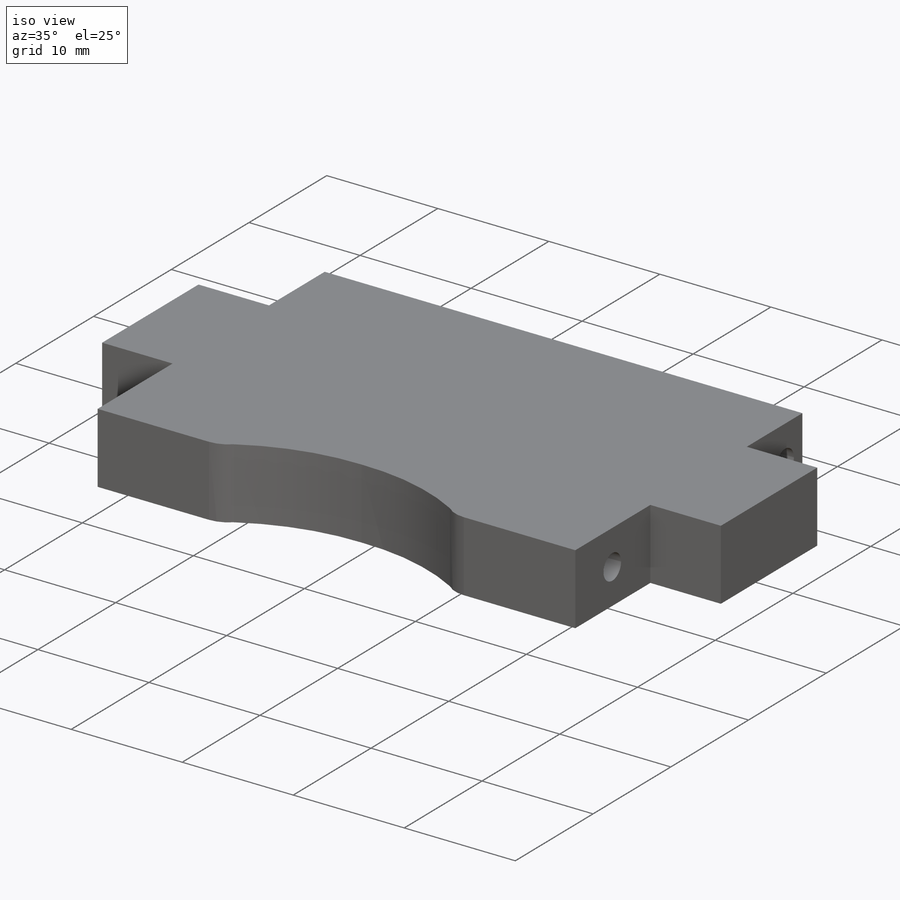
[diagram: iso view]
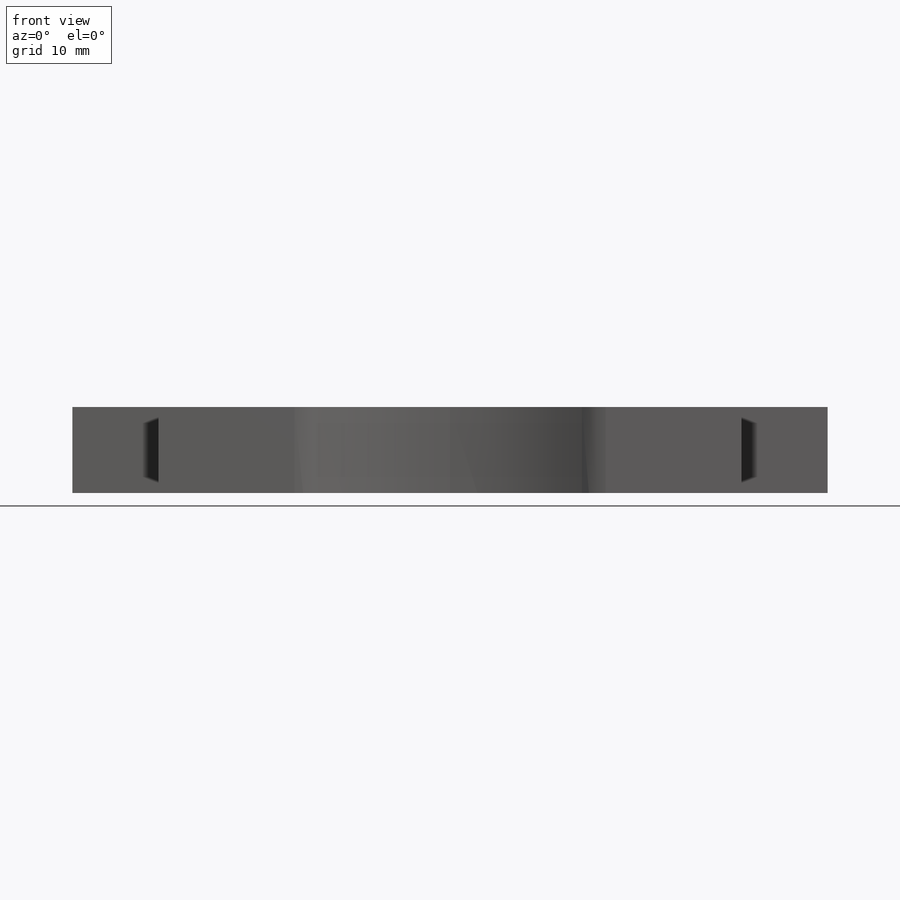
[diagram: front view]
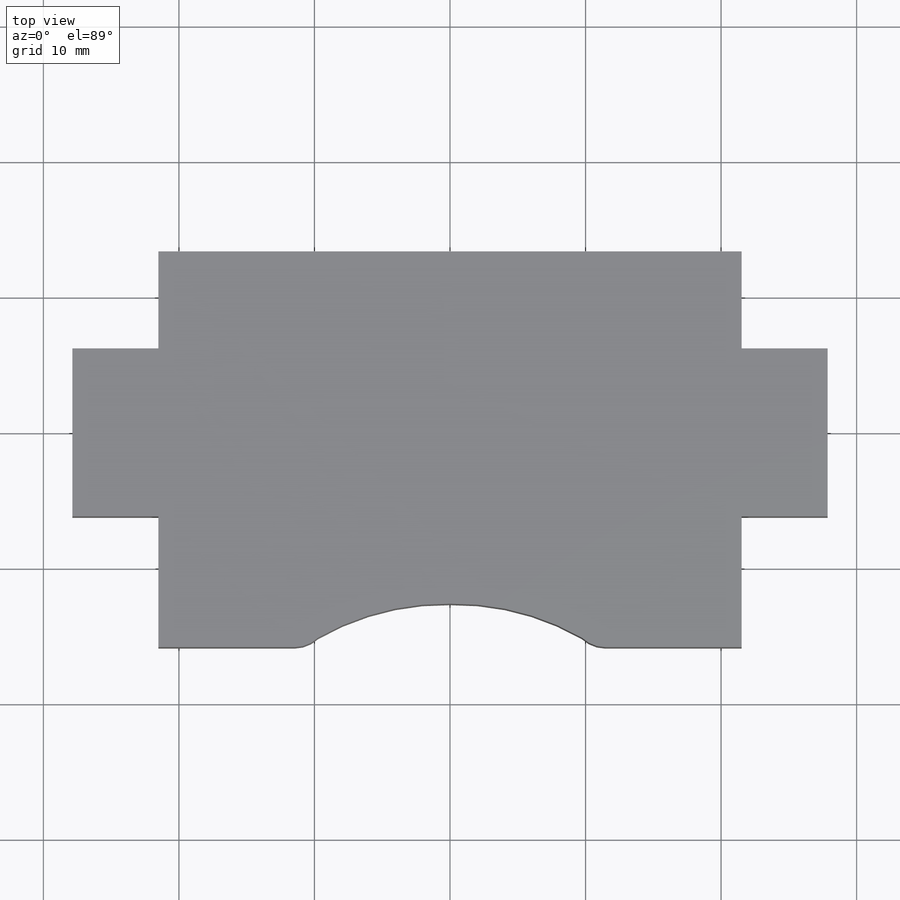
[diagram: top view]
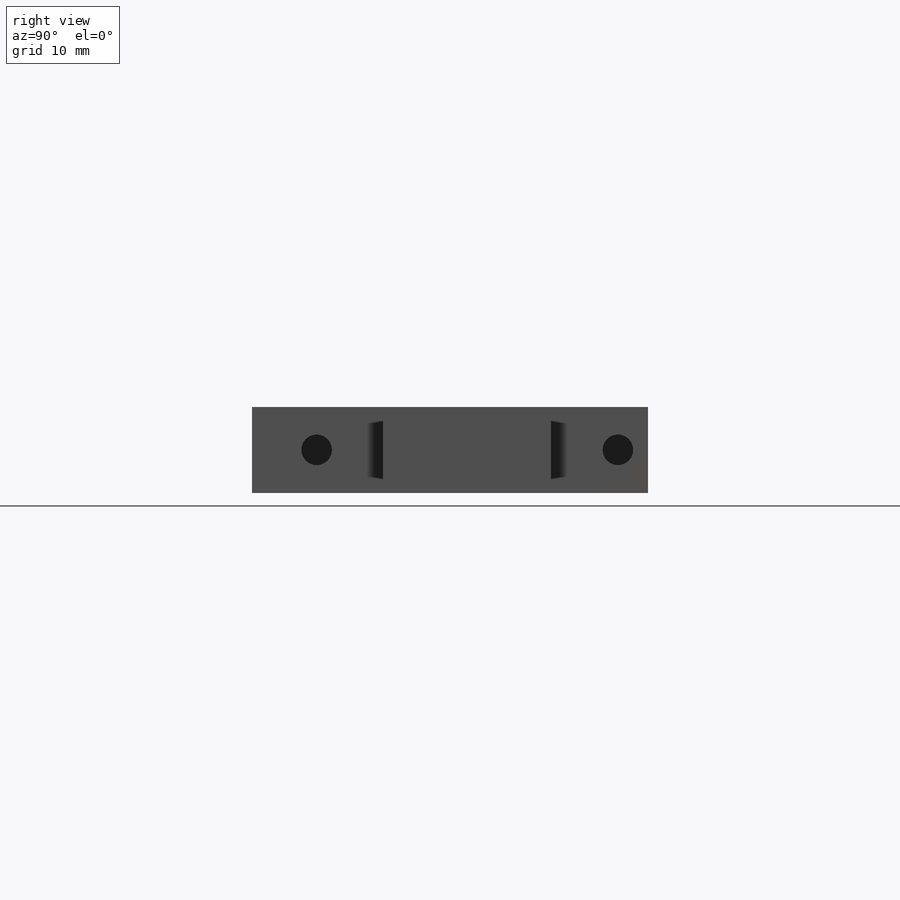
[diagram: right view]
SOLIDWORKS PART (.sldprt)
format: sldprt  version: not decoded by parser v0  size: 171,520 bytes
history: native  units: mm
features: sketch x2, material x1, extrude x1, cut_extrude x1, mirror x1, fillet x1 (+11 scaffold rows collapsed)
feature tree (18):
  scaffold x11  (default folders/planes/origin — collapsed)
  material  "Material <not specified>"
  sketch  "Sketch1"  dims[c1.D1=43.0276mm c1.D2=60.96mm c1.D3=31.75mm c1.D4=12.3952mm c1.D5=9.525mm c1.D6=6.35mm c1.D7=3.048mm c1.D8=12.7mm c1.D9=3.2385mm c2.D2=31.75mm c2.D5=2.3622mm c2.D1=~67.30986mm c3.D1=~179.87125deg c4.D1=6.1976mm c4.D2=6.1976mm]
  extrude  "Boss-Extrude1"  Depth=6.35mm
  sketch  "Sketch2"  dims[D1=2.2606mm]
  cut_extrude  "Cut-Extrude1"  Depth=12.7mm
  mirror  "Mirror1"
  fillet  "Fillet1"  Radius=2.54mm
decode coverage: 5 of 6 modeling features carry decoded parameters
note: ~ marks probable driven/reference dimensions
note: suppression state not decoded; provenance and decode notes live in map.json
